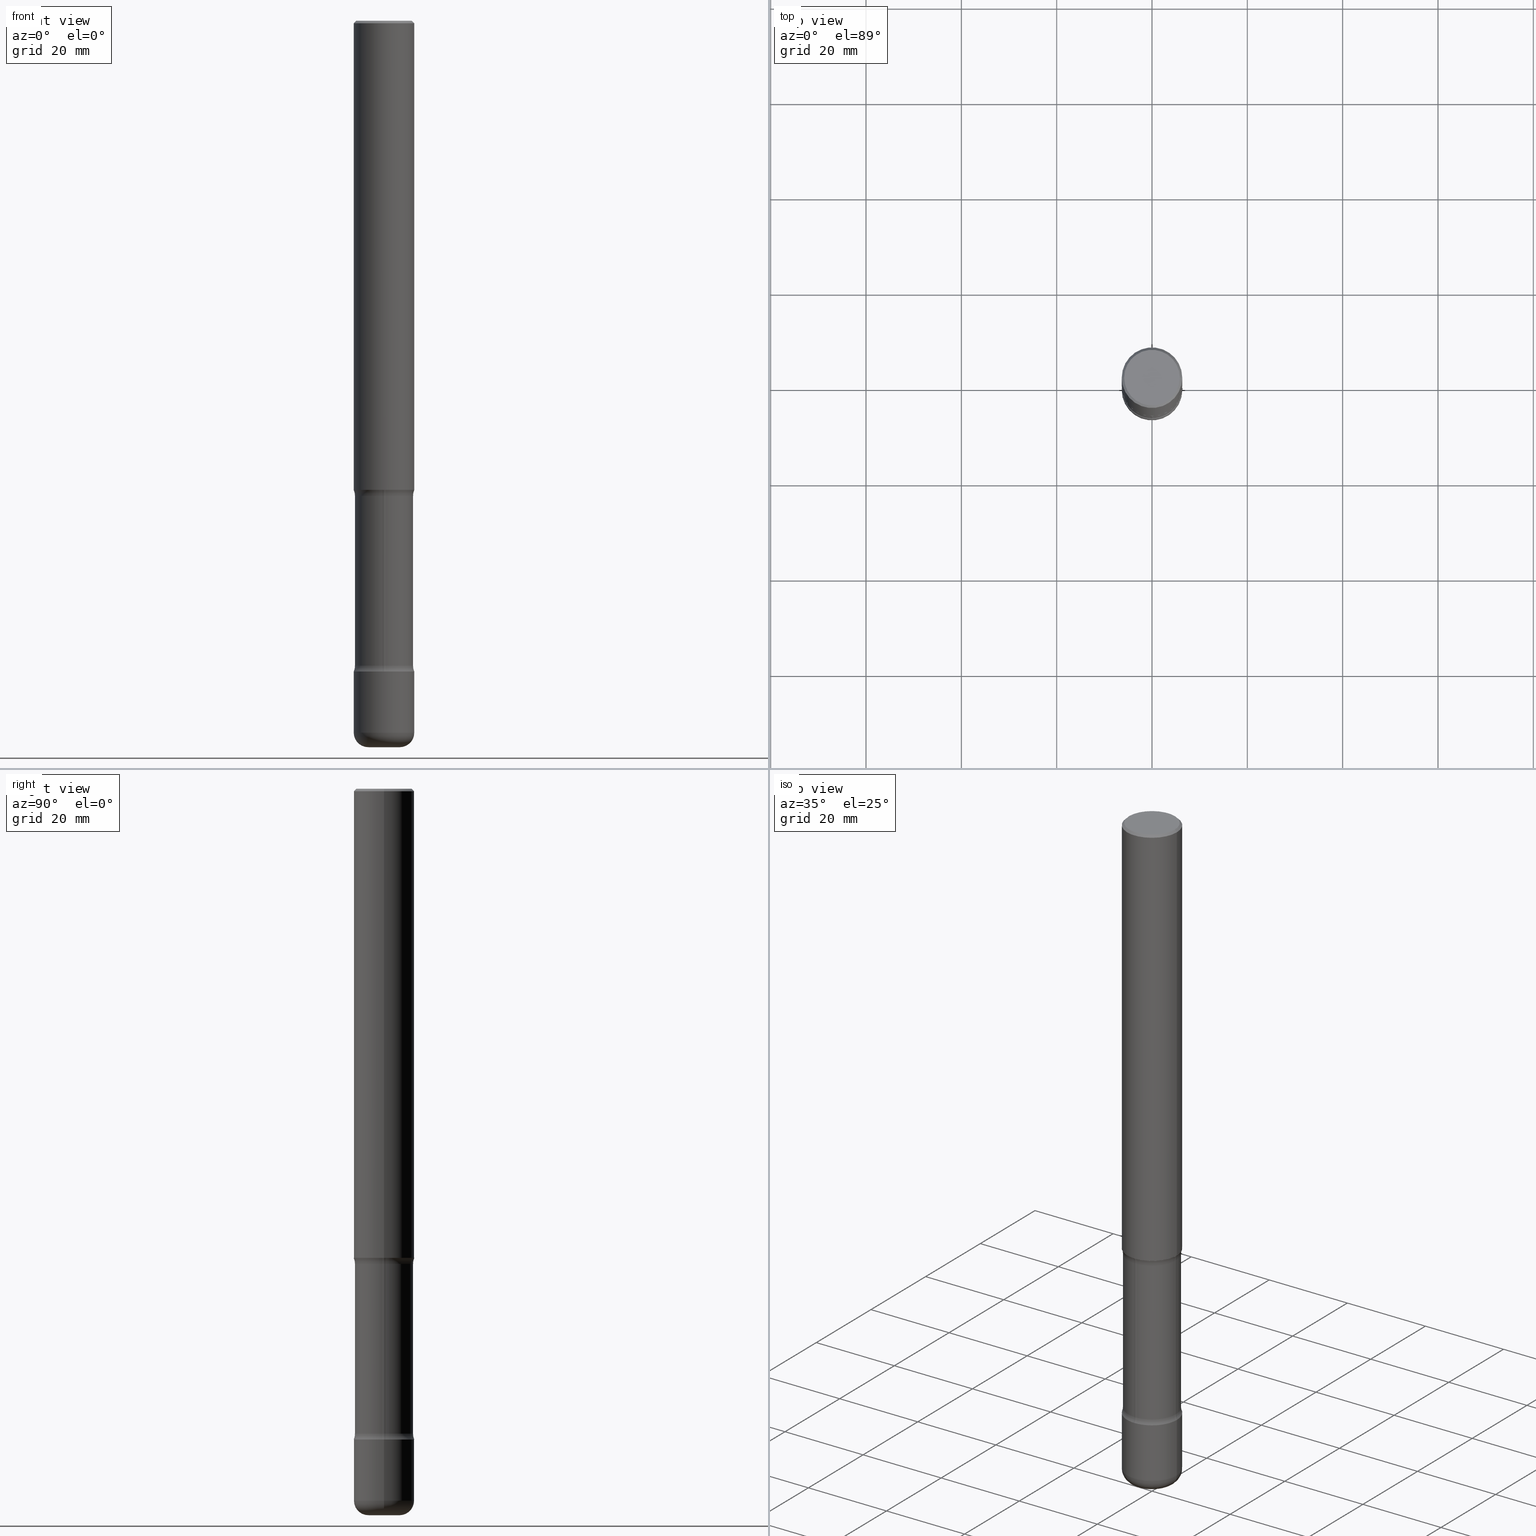
[diagram: canonical four-view strip — front | top / right | iso, engineering-drawing reading convention]
A machine part, canonical four-view strip (front | top / right | iso — engineering-drawing reading convention). The complete STEP part file that produces these views, byte-faithful:
ISO-10303-21;
HEADER;
FILE_DESCRIPTION (( 'STEP AP203' ),
    '1' );
FILE_NAME ('32774.STEP',
    '2023-03-11T07:01:01',
    ( '' ),
    ( '' ),
    'SwSTEP 2.0',
    'SolidWorks 2022',
    '' );
FILE_SCHEMA (( 'CONFIG_CONTROL_DESIGN' ));
ENDSEC;

DATA;
#1 = DIRECTION ( 'NONE',  ( 1.000000000000000000, -6.982962677686266711E-15, 4.883557194083112901E-29 ) ) ;
#2 = EDGE_CURVE ( 'NONE', #613, #259, #320, .T. ) ;
#3 = CARTESIAN_POINT ( 'NONE',  ( 4.890937612370287172E-31, -6.982962677686310098E-17, -0.02000000000000005593 ) ) ;
#4 = EDGE_LOOP ( 'NONE', ( #447, #222 ) ) ;
#5 = ADVANCED_FACE ( 'NONE', ( #46 ), #289, .T. ) ;
#6 = CC_DESIGN_PERSON_AND_ORGANIZATION_ASSIGNMENT ( #777, #214, ( #263 ) ) ;
#7 = CARTESIAN_POINT ( 'NONE',  ( 0.2499999999999996947, -2.227565094181926275E-14, -5.880000000000000782 ) ) ;
#8 = DIRECTION ( 'NONE',  ( 2.447307951285537878E-29, -3.488847578381732636E-15, -1.000000000000000000 ) ) ;
#9 = AXIS2_PLACEMENT_3D ( 'NONE', #547, #743, #486 ) ;
#10 = ORIENTED_EDGE ( 'NONE', *, *, #2, .T. ) ;
#11 = AXIS2_PLACEMENT_3D ( 'NONE', #397, #148, #756 ) ;
#12 = ADVANCED_FACE ( 'NONE', ( #112 ), #36, .F. ) ;
#13 = APPLICATION_PROTOCOL_DEFINITION ( 'international standard', 'config_control_design', 1994, #69 ) ;
#14 = CARTESIAN_POINT ( 'NONE',  ( 1.745740669421661735E-15, 0.2499999999999864830, -3.875000000000001776 ) ) ;
#15 = EDGE_LOOP ( 'NONE', ( #365, #551 ) ) ;
#16 = ORIENTED_EDGE ( 'NONE', *, *, #427, .F. ) ;
#17 = PLANE ( 'NONE',  #11 ) ;
#18 = VERTEX_POINT ( 'NONE', #353 ) ;
#19 = ORIENTED_EDGE ( 'NONE', *, *, #74, .F. ) ;
#20 = CARTESIAN_POINT ( 'NONE',  ( 0.1049999999999998712, -2.166924032282488112E-14, -5.999999999999999112 ) ) ;
#21 = DIRECTION ( 'NONE',  ( -2.445468806185136597E-29, 3.491481338843145583E-15, 1.000000000000000000 ) ) ;
#22 = EDGE_CURVE ( 'NONE', #576, #67, #334, .T. ) ;
#23 = EDGE_LOOP ( 'NONE', ( #249, #627, #563, #241 ) ) ;
#24 = CIRCLE ( 'NONE', #543, 0.2500000000000000000 ) ;
#25 = CIRCLE ( 'NONE', #297, 0.2500000000000000000 ) ;
#26 = AXIS2_PLACEMENT_3D ( 'NONE', #485, #422, #673 ) ;
#27 =( LENGTH_UNIT ( ) NAMED_UNIT ( * ) SI_UNIT ( $, .METRE. ) );
#28 = CARTESIAN_POINT ( 'NONE',  ( -1.579290560942345214E-17, -2.093608588548193142E-14, -5.996333319203365875 ) ) ;
#29 = ORIENTED_EDGE ( 'NONE', *, *, #623, .T. ) ;
#30 = CC_DESIGN_APPROVAL ( #153, ( #177 ) ) ;
#31 = COORDINATED_UNIVERSAL_TIME_OFFSET ( 5, 0, .BEHIND. ) ;
#32 = CARTESIAN_POINT ( 'NONE',  ( -1.715124499442751545E-15, -0.2500000000000187073, -5.374999999999999112 ) ) ;
#33 = ORIENTED_EDGE ( 'NONE', *, *, #70, .T. ) ;
#34 = APPROVAL_ROLE ( '' ) ;
#35 = FACE_OUTER_BOUND ( 'NONE', #684, .T. ) ;
#36 = PLANE ( 'NONE',  #155 ) ;
#37 = CIRCLE ( 'NONE', #113, 0.2500000000000000000 ) ;
#38 = DIRECTION ( 'NONE',  ( 2.447307951285537878E-29, -3.488847578381732636E-15, -1.000000000000000000 ) ) ;
#39 = CYLINDRICAL_SURFACE ( 'NONE', #296, 0.2400000000000001854 ) ;
#40 =( GEOMETRIC_REPRESENTATION_CONTEXT ( 3 ) GLOBAL_UNCERTAINTY_ASSIGNED_CONTEXT ( ( #531 ) ) GLOBAL_UNIT_ASSIGNED_CONTEXT ( ( #138, #275, #197 ) ) REPRESENTATION_CONTEXT ( 'NONE', 'WORKASPACE' ) );
#41 = LINE ( 'NONE', #483, #230 ) ;
#42 = EDGE_CURVE ( 'NONE', #178, #604, #647, .T. ) ;
#43 = DIRECTION ( 'NONE',  ( 1.000000000000000000, -6.982962677686256455E-15, 0.000000000000000000 ) ) ;
#44 = COORDINATED_UNIVERSAL_TIME_OFFSET ( 5, 0, .BEHIND. ) ;
#45 = DIRECTION ( 'NONE',  ( -1.000000000000000000, 6.982962677686265922E-15, 0.000000000000000000 ) ) ;
#46 = FACE_OUTER_BOUND ( 'NONE', #206, .T. ) ;
#47 = ADVANCED_FACE ( 'NONE', ( #232 ), #415, .F. ) ;
#48 = ADVANCED_FACE ( 'NONE', ( #173 ), #39, .T. ) ;
#49 = AXIS2_PLACEMENT_3D ( 'NONE', #493, #58, #739 ) ;
#50 = DIRECTION ( 'NONE',  ( 7.105427357601001859E-15, 1.000000000000000000, -3.491481338843145583E-15 ) ) ;
#51 = CIRCLE ( 'NONE', #504, 0.1250000000000001110 ) ;
#52 = VECTOR ( 'NONE', #118, 39.37007874015748143 ) ;
#53 = FACE_OUTER_BOUND ( 'NONE', #307, .T. ) ;
#54 = DIRECTION ( 'NONE',  ( 1.000000000000000000, -6.982962677686262766E-15, 0.000000000000000000 ) ) ;
#55 = DIRECTION ( 'NONE',  ( -2.445468806185136597E-29, 3.491481338843145583E-15, 1.000000000000000000 ) ) ;
#56 = VERTEX_POINT ( 'NONE', #162 ) ;
#57 = CYLINDRICAL_SURFACE ( 'NONE', #723, 0.2400000000000001854 ) ;
#58 = DIRECTION ( 'NONE',  ( 2.447307951285537878E-29, -3.488847578381732636E-15, -1.000000000000000000 ) ) ;
#59 = ORIENTED_EDGE ( 'NONE', *, *, #109, .F. ) ;
#60 = CARTESIAN_POINT ( 'NONE',  ( 9.593326020798916453E-29, -1.370435875585690915E-14, -3.923989794855664126 ) ) ;
#61 = CARTESIAN_POINT ( 'NONE',  ( -0.1300000000000000322, -1.938936795478409915E-14, -5.999999999999999112 ) ) ;
#62 = AXIS2_PLACEMENT_3D ( 'NONE', #248, #252, #176 ) ;
#63 = AXIS2_PLACEMENT_3D ( 'NONE', #333, #582, #690 ) ;
#64 = ORIENTED_EDGE ( 'NONE', *, *, #440, .T. ) ;
#65 = DIRECTION ( 'NONE',  ( 1.000000000000000000, -6.982962677686262766E-15, 0.000000000000000000 ) ) ;
#66 = FACE_OUTER_BOUND ( 'NONE', #15, .T. ) ;
#67 = VERTEX_POINT ( 'NONE', #657 ) ;
#68 = VERTEX_POINT ( 'NONE', #100 ) ;
#69 = APPLICATION_CONTEXT ( 'configuration controlled 3d designs of mechanical parts and assemblies' ) ;
#70 = EDGE_CURVE ( 'NONE', #421, #18, #349, .T. ) ;
#71 = CARTESIAN_POINT ( 'NONE',  ( 0.000000000000000000, 0.000000000000000000, 0.000000000000000000 ) ) ;
#72 = FACE_OUTER_BOUND ( 'NONE', #687, .T. ) ;
#73 = ORIENTED_EDGE ( 'NONE', *, *, #688, .F. ) ;
#74 = EDGE_CURVE ( 'NONE', #68, #390, #361, .T. ) ;
#75 = CARTESIAN_POINT ( 'NONE',  ( 1.314439483324511145E-28, -1.876671219628190963E-14, -5.375000000000000888 ) ) ;
#76 = CARTESIAN_POINT ( 'NONE',  ( 1.467281283711081734E-28, -2.094888803305886955E-14, -5.999999999999999112 ) ) ;
#77 = CLOSED_SHELL ( 'NONE', ( #420, #406, #670, #301, #327, #705, #47, #233 ) ) ;
#78 = EDGE_LOOP ( 'NONE', ( #699, #246 ) ) ;
#79 = AXIS2_PLACEMENT_3D ( 'NONE', #461, #706, #317 ) ;
#80 = DIRECTION ( 'NONE',  ( 1.000000000000000000, -6.982962677686260400E-15, 0.000000000000000000 ) ) ;
#81 = FACE_OUTER_BOUND ( 'NONE', #4, .T. ) ;
#82 = EDGE_LOOP ( 'NONE', ( #797, #754 ) ) ;
#83 = DIRECTION ( 'NONE',  ( 1.000000000000000000, -6.982962677686265922E-15, 4.876176775795935793E-29 ) ) ;
#84 = CYLINDRICAL_SURFACE ( 'NONE', #336, 0.2499999999999998890 ) ;
#85 = ORIENTED_EDGE ( 'NONE', *, *, #384, .T. ) ;
#86 = ORIENTED_EDGE ( 'NONE', *, *, #22, .F. ) ;
#87 = DIRECTION ( 'NONE',  ( 1.000000000000000000, -6.982962677686266711E-15, 0.000000000000000000 ) ) ;
#88 = DIRECTION ( 'NONE',  ( 1.000000000000000000, -6.982962677686266711E-15, 4.876225828469314487E-29 ) ) ;
#89 = ORIENTED_EDGE ( 'NONE', *, *, #630, .F. ) ;
#90 = AXIS2_PLACEMENT_3D ( 'NONE', #262, #641, #464 ) ;
#91 = AXIS2_PLACEMENT_3D ( 'NONE', #786, #180, #728 ) ;
#92 = CIRCLE ( 'NONE', #788, 0.2400000000000000466 ) ;
#93 = CARTESIAN_POINT ( 'NONE',  ( 1.109421455397081628E-27, -1.583959811155270230E-13, -45.36641205936084731 ) ) ;
#94 = ORIENTED_EDGE ( 'NONE', *, *, #260, .T. ) ;
#95 = APPROVAL_STATUS ( 'not_yet_approved' ) ;
#96 = DIRECTION ( 'NONE',  ( 2.447307951285537878E-29, -3.488847578381732636E-15, -1.000000000000000000 ) ) ;
#97 = EDGE_LOOP ( 'NONE', ( #527, #806, #579, #600 ) ) ;
#98 = EDGE_CURVE ( 'NONE', #588, #325, #491, .T. ) ;
#99 = CARTESIAN_POINT ( 'NONE',  ( -1.680822009453930364E-15, -0.2400000000000137579, -3.923989794855663238 ) ) ;
#100 = CARTESIAN_POINT ( 'NONE',  ( 0.2400000000000002687, -2.027157628439431676E-14, -5.326010205144338094 ) ) ;
#101 = CIRCLE ( 'NONE', #515, 0.2499999999999998057 ) ;
#102 = DATE_AND_TIME ( #339, #134 ) ;
#103 = AXIS2_PLACEMENT_3D ( 'NONE', #299, #357, #546 ) ;
#104 = DIRECTION ( 'NONE',  ( -2.445468806185136597E-29, 3.491481338843145583E-15, 1.000000000000000000 ) ) ;
#105 = EDGE_LOOP ( 'NONE', ( #398, #776, #435, #559 ) ) ;
#106 = EDGE_CURVE ( 'NONE', #732, #56, #771, .T. ) ;
#107 = ADVANCED_FACE ( 'NONE', ( #345 ), #780, .T. ) ;
#108 = CARTESIAN_POINT ( 'NONE',  ( 1.606081415867839292E-15, 0.2299999999999997324, -8.009064516888723911E-16 ) ) ;
#109 = EDGE_CURVE ( 'NONE', #694, #264, #735, .T. ) ;
#110 = ORIENTED_EDGE ( 'NONE', *, *, #573, .F. ) ;
#111 = LINE ( 'NONE', #667, #156 ) ;
#112 = FACE_OUTER_BOUND ( 'NONE', #424, .T. ) ;
#113 = AXIS2_PLACEMENT_3D ( 'NONE', #496, #245, #734 ) ;
#114 = DIRECTION ( 'NONE',  ( 2.447307951285537878E-29, -3.488847578381732636E-15, -1.000000000000000000 ) ) ;
#115 = CIRCLE ( 'NONE', #517, 0.2299999999999997324 ) ;
#116 = CARTESIAN_POINT ( 'NONE',  ( 9.473432906316804072E-29, -1.353344082870930909E-14, -3.875000000000000444 ) ) ;
#117 = ORIENTED_EDGE ( 'NONE', *, *, #589, .F. ) ;
#118 = DIRECTION ( 'NONE',  ( -2.445468806185136877E-29, 3.491481338843145188E-15, 1.000000000000000000 ) ) ;
#119 = LOCAL_TIME ( 2, 1, 1.000000000000000000, #399 ) ;
#120 = CARTESIAN_POINT ( 'NONE',  ( 1.109421455397081628E-27, -1.583959811155270230E-13, -45.36641205936084731 ) ) ;
#121 = VERTEX_POINT ( 'NONE', #374 ) ;
#122 = CARTESIAN_POINT ( 'NONE',  ( 1.437935658036860328E-28, -2.052991027239769923E-14, -5.880000000000000782 ) ) ;
#123 = CARTESIAN_POINT ( 'NONE',  ( 1.314439483324511145E-28, -1.876671219628190963E-14, -5.375000000000000888 ) ) ;
#124 = ORIENTED_EDGE ( 'NONE', *, *, #384, .F. ) ;
#125 = DIRECTION ( 'NONE',  ( 1.000000000000000000, -6.982962677686270655E-15, 0.000000000000000000 ) ) ;
#126 = AXIS2_PLACEMENT_3D ( 'NONE', #116, #8, #257 ) ;
#127 = CYLINDRICAL_SURFACE ( 'NONE', #683, 0.2400000000000001854 ) ;
#128 = CIRCLE ( 'NONE', #519, 0.2500000000000000000 ) ;
#129 = AXIS2_PLACEMENT_3D ( 'NONE', #565, #643, #83 ) ;
#130 = ORIENTED_EDGE ( 'NONE', *, *, #98, .T. ) ;
#131 = EDGE_CURVE ( 'NONE', #470, #632, #785, .T. ) ;
#132 = DIRECTION ( 'NONE',  ( 1.000000000000000000, -6.982962677686270655E-15, 0.000000000000000000 ) ) ;
#133 = EDGE_CURVE ( 'NONE', #470, #259, #229, .T. ) ;
#134 = LOCAL_TIME ( 2, 1, 1.000000000000000000, #597 ) ;
#135 = ORIENTED_EDGE ( 'NONE', *, *, #331, .T. ) ;
#136 = DIRECTION ( 'NONE',  ( 2.447307951285537878E-29, -3.488847578381732636E-15, -1.000000000000000000 ) ) ;
#137 = ORIENTED_EDGE ( 'NONE', *, *, #192, .F. ) ;
#138 =( CONVERSION_BASED_UNIT ( 'INCH', #570 ) LENGTH_UNIT ( ) NAMED_UNIT ( #347 ) );
#139 = CARTESIAN_POINT ( 'NONE',  ( 1.302459181810417859E-28, -1.859566524174961022E-14, -5.326010205144338094 ) ) ;
#140 = ORIENTED_EDGE ( 'NONE', *, *, #589, .T. ) ;
#141 = EDGE_LOOP ( 'NONE', ( #277, #272, #110, #356 ) ) ;
#142 = CONICAL_SURFACE ( 'NONE', #595, 1127.411546571527197, 1.535889741755011473 ) ;
#143 = FACE_OUTER_BOUND ( 'NONE', #501, .T. ) ;
#144 = ORIENTED_EDGE ( 'NONE', *, *, #784, .T. ) ;
#145 = ORIENTED_EDGE ( 'NONE', *, *, #503, .T. ) ;
#146 = APPROVAL_PERSON_ORGANIZATION ( #655, #716, #342 ) ;
#147 = DIRECTION ( 'NONE',  ( 2.447307951285537878E-29, -3.488847578381732636E-15, -1.000000000000000000 ) ) ;
#148 = DIRECTION ( 'NONE',  ( 2.447307951285537878E-29, -3.488847578381732242E-15, -1.000000000000000000 ) ) ;
#149 = ORIENTED_EDGE ( 'NONE', *, *, #620, .T. ) ;
#150 = ADVANCED_FACE ( 'NONE', ( #66, #805 ), #311, .F. ) ;
#151 = EDGE_CURVE ( 'NONE', #264, #337, #256, .T. ) ;
#152 = CARTESIAN_POINT ( 'NONE',  ( 4.890937612370287172E-31, -6.982962677686310098E-17, -0.02000000000000005593 ) ) ;
#153 = APPROVAL ( #454, 'UNSPECIFIED' ) ;
#154 = ORIENTED_EDGE ( 'NONE', *, *, #440, .F. ) ;
#155 = AXIS2_PLACEMENT_3D ( 'NONE', #665, #408, #659 ) ;
#156 = VECTOR ( 'NONE', #804, 39.37007874015748143 ) ;
#157 = AXIS2_PLACEMENT_3D ( 'NONE', #487, #677, #499 ) ;
#158 = CARTESIAN_POINT ( 'NONE',  ( -0.2299999999999997324, 1.640996229256270744E-15, 4.268512490089056766E-18 ) ) ;
#159 = EDGE_CURVE ( 'NONE', #675, #56, #24, .T. ) ;
#160 = DIRECTION ( 'NONE',  ( -2.445468806185136877E-29, 3.491481338843145188E-15, 1.000000000000000000 ) ) ;
#161 = DIRECTION ( 'NONE',  ( 2.445468806185136597E-29, -3.491481338843145583E-15, -1.000000000000000000 ) ) ;
#162 = CARTESIAN_POINT ( 'NONE',  ( 0.2500000000000000000, -2.051245286570347630E-14, -5.375000000000000888 ) ) ;
#163 = DATE_AND_TIME ( #534, #223 ) ;
#164 = CARTESIAN_POINT ( 'NONE',  ( 1.302459181810417859E-28, -1.859566524174961022E-14, -5.326010205144338094 ) ) ;
#165 = ORIENTED_EDGE ( 'NONE', *, *, #477, .F. ) ;
#166 = EDGE_CURVE ( 'NONE', #390, #576, #179, .T. ) ;
#167 = AXIS2_PLACEMENT_3D ( 'NONE', #542, #593, #358 ) ;
#168 = VECTOR ( 'NONE', #693, 39.37007874015748143 ) ;
#169 = CIRCLE ( 'NONE', #286, 0.1300000000000000322 ) ;
#170 = CARTESIAN_POINT ( 'NONE',  ( 9.473432906316804072E-29, -1.353344082870930909E-14, -3.875000000000000444 ) ) ;
#171 = DIRECTION ( 'NONE',  ( 1.000000000000000000, -6.982962677686260400E-15, 0.000000000000000000 ) ) ;
#172 = DIRECTION ( 'NONE',  ( -2.445468806185136597E-29, 3.491481338843145583E-15, 1.000000000000000000 ) ) ;
#173 = FACE_OUTER_BOUND ( 'NONE', #371, .T. ) ;
#174 = EDGE_CURVE ( 'NONE', #507, #240, #270, .T. ) ;
#175 = DIRECTION ( 'NONE',  ( -1.000000000000000000, 6.982962677686265922E-15, -4.883557194083112340E-29 ) ) ;
#176 = DIRECTION ( 'NONE',  ( 6.860497997771529985E-15, 1.000000000000000000, 0.000000000000000000 ) ) ;
#177 = PRODUCT_DEFINITION ( 'UNKNOWN', '', #263, #795 ) ;
#178 = VERTEX_POINT ( 'NONE', #61 ) ;
#179 = CIRCLE ( 'NONE', #469, 0.1249999999999999584 ) ;
#180 = DIRECTION ( 'NONE',  ( -2.445468806185136597E-29, 3.491481338843145583E-15, 1.000000000000000000 ) ) ;
#181 = CONICAL_SURFACE ( 'NONE', #258, 0.2499999999999998057, 0.7853981633974482790 ) ;
#182 = CARTESIAN_POINT ( 'NONE',  ( 4.890937612370287172E-31, -6.982962677686310098E-17, -0.02000000000000005593 ) ) ;
#183 = ORIENTED_EDGE ( 'NONE', *, *, #359, .T. ) ;
#184 = CARTESIAN_POINT ( 'NONE',  ( -0.2499999999999999167, -1.699035535688165916E-14, -5.375000000000000888 ) ) ;
#185 = DIRECTION ( 'NONE',  ( 1.000000000000000000, -6.982962677686265922E-15, 4.876176775795935793E-29 ) ) ;
#186 = ORIENTED_EDGE ( 'NONE', *, *, #98, .F. ) ;
#187 = EDGE_CURVE ( 'NONE', #67, #576, #37, .T. ) ;
#188 = PRODUCT ( '32774', '32774', '', ( #763 ) ) ;
#189 = CARTESIAN_POINT ( 'NONE',  ( 0.1300000000000000044, -2.143769542049691264E-14, -5.880000000000000782 ) ) ;
#190 = EDGE_LOOP ( 'NONE', ( #253, #369, #33, #465 ) ) ;
#191 = EDGE_LOOP ( 'NONE', ( #514, #456, #268, #10 ) ) ;
#192 = EDGE_CURVE ( 'NONE', #18, #584, #101, .T. ) ;
#193 = CARTESIAN_POINT ( 'NONE',  ( 1.466498880573014193E-28, -2.093444944235245511E-14, -5.996333319203365875 ) ) ;
#194 = TOROIDAL_SURFACE ( 'NONE', #634, 0.3650000000000000466, 0.1250000000000000833 ) ;
#195 = CIRCLE ( 'NONE', #157, 0.1250000000000000000 ) ;
#196 = EDGE_LOOP ( 'NONE', ( #768, #478, #703, #539 ) ) ;
#197 =( NAMED_UNIT ( * ) SI_UNIT ( $, .STERADIAN. ) SOLID_ANGLE_UNIT ( ) );
#198 = FACE_OUTER_BOUND ( 'NONE', #141, .T. ) ;
#199 = ORIENTED_EDGE ( 'NONE', *, *, #688, .T. ) ;
#200 = PERSON_AND_ORGANIZATION ( #210, #599 ) ;
#201 = LINE ( 'NONE', #451, #168 ) ;
#202 = ORIENTED_EDGE ( 'NONE', *, *, #131, .F. ) ;
#203 = DIRECTION ( 'NONE',  ( 1.000000000000000000, 0.000000000000000000, 0.000000000000000000 ) ) ;
#204 = FACE_OUTER_BOUND ( 'NONE', #610, .T. ) ;
#205 = CIRCLE ( 'NONE', #126, 0.2500000000000000000 ) ;
#206 = EDGE_LOOP ( 'NONE', ( #430, #64, #135, #137 ) ) ;
#207 = TOROIDAL_SURFACE ( 'NONE', #619, 0.3650000000000002687, 0.1250000000000000000 ) ;
#208 = CYLINDRICAL_SURFACE ( 'NONE', #79, 0.2500000000000000000 ) ;
#209 = EDGE_CURVE ( 'NONE', #325, #18, #674, .T. ) ;
#210 = PERSON ( 'UNSPECIFIED', 'UNSPECIFIED', 'UNSPECIFIED', ('UNSPECIFIED'), ('UNSPECIFIED'), ('UNSPECIFIED') ) ;
#211 = EDGE_LOOP ( 'NONE', ( #744, #144, #199, #554 ) ) ;
#212 = PERSON_AND_ORGANIZATION ( #210, #599 ) ;
#213 = ORIENTED_EDGE ( 'NONE', *, *, #109, .T. ) ;
#214 = PERSON_AND_ORGANIZATION_ROLE ( 'creator' ) ;
#215 = ADVANCED_FACE ( 'NONE', ( #314 ), #386, .T. ) ;
#216 = CYLINDRICAL_SURFACE ( 'NONE', #671, 0.2400000000000001854 ) ;
#217 = CARTESIAN_POINT ( 'NONE',  ( 1.302450171876299907E-28, -1.859579426913431272E-14, -5.326010205144338094 ) ) ;
#218 = MANIFOLD_SOLID_BREP ( 'Body-Move/Copy2[4]', #77 ) ;
#219 = ORIENTED_EDGE ( 'NONE', *, *, #166, .T. ) ;
#220 = APPROVAL_DATE_TIME ( #591, #680 ) ;
#221 = CARTESIAN_POINT ( 'NONE',  ( 1.314439483324511145E-28, -1.876671219628190963E-14, -5.375000000000000888 ) ) ;
#222 = ORIENTED_EDGE ( 'NONE', *, *, #448, .F. ) ;
#223 = LOCAL_TIME ( 2, 1, 1.000000000000000000, #463 ) ;
#224 = PERSON_AND_ORGANIZATION ( #210, #599 ) ;
#225 = DIRECTION ( 'NONE',  ( -1.000000000000000000, 6.982962677686266711E-15, 0.000000000000000000 ) ) ;
#226 = CC_DESIGN_PERSON_AND_ORGANIZATION_ASSIGNMENT ( #281, #773, ( #177 ) ) ;
#227 = LINE ( 'NONE', #725, #310 ) ;
#228 = CARTESIAN_POINT ( 'NONE',  ( 9.476191623967405434E-29, -1.352949018801719066E-14, -3.875000000000000444 ) ) ;
#229 = CIRCLE ( 'NONE', #62, 0.1250000000000000000 ) ;
#230 = VECTOR ( 'NONE', #782, 39.37007874015748143 ) ;
#231 = CIRCLE ( 'NONE', #505, 0.2500000000000000000 ) ;
#232 = FACE_OUTER_BOUND ( 'NONE', #191, .T. ) ;
#233 = ADVANCED_FACE ( 'NONE', ( #53 ), #127, .T. ) ;
#234 = EDGE_CURVE ( 'NONE', #694, #315, #479, .T. ) ;
#235 = DIRECTION ( 'NONE',  ( -6.982962677686264344E-15, -1.000000000000000000, 0.000000000000000000 ) ) ;
#236 = DIRECTION ( 'NONE',  ( 1.000000000000000000, -6.982962677686266711E-15, 0.000000000000000000 ) ) ;
#237 = ADVANCED_FACE ( 'NONE', ( #488 ), #801, .F. ) ;
#238 = CARTESIAN_POINT ( 'NONE',  ( 0.2400000000000001854, -1.520540123066189720E-14, -3.875000000000000444 ) ) ;
#239 = DIRECTION ( 'NONE',  ( 1.000000000000000000, -6.860497997771530774E-15, 4.840831133887331050E-29 ) ) ;
#240 = VERTEX_POINT ( 'NONE', #423 ) ;
#241 = ORIENTED_EDGE ( 'NONE', *, *, #159, .F. ) ;
#242 = AXIS2_PLACEMENT_3D ( 'NONE', #413, #533, #294 ) ;
#243 = CARTESIAN_POINT ( 'NONE',  ( 2.548781377355583748E-15, 0.3649999999999863354, -3.923989794855665458 ) ) ;
#244 = CIRCLE ( 'NONE', #402, 0.1199999999999993849 ) ;
#245 = DIRECTION ( 'NONE',  ( -2.445468806185136597E-29, 3.491481338843145583E-15, 1.000000000000000000 ) ) ;
#246 = ORIENTED_EDGE ( 'NONE', *, *, #540, .T. ) ;
#247 = CARTESIAN_POINT ( 'NONE',  ( 1.437935658036860328E-28, -2.052991027239769923E-14, -5.880000000000000782 ) ) ;
#248 = CARTESIAN_POINT ( 'NONE',  ( -2.504081769186480815E-15, -0.3650000000000188649, -5.326010205144336318 ) ) ;
#249 = ORIENTED_EDGE ( 'NONE', *, *, #662, .F. ) ;
#250 = EDGE_CURVE ( 'NONE', #584, #18, #555, .T. ) ;
#251 = CARTESIAN_POINT ( 'NONE',  ( 9.593326020798916453E-29, -1.370435875585690915E-14, -3.923989794855664126 ) ) ;
#252 = DIRECTION ( 'NONE',  ( 1.000000000000000000, -6.860497997771530774E-15, 4.840831133887331050E-29 ) ) ;
#253 = ORIENTED_EDGE ( 'NONE', *, *, #790, .F. ) ;
#254 = ORIENTED_EDGE ( 'NONE', *, *, #512, .T. ) ;
#255 = CARTESIAN_POINT ( 'NONE',  ( 0.000000000000000000, 0.000000000000000000, 0.000000000000000000 ) ) ;
#256 = CIRCLE ( 'NONE', #708, 0.2400000000000000466 ) ;
#257 = DIRECTION ( 'NONE',  ( 6.982962677686265922E-15, 1.000000000000000000, -4.370956789862821150E-15 ) ) ;
#258 = AXIS2_PLACEMENT_3D ( 'NONE', #152, #321, #513 ) ;
#259 = VERTEX_POINT ( 'NONE', #668 ) ;
#260 = EDGE_CURVE ( 'NONE', #304, #240, #205, .T. ) ;
#261 = CYLINDRICAL_SURFACE ( 'NONE', #793, 0.2500000000000000000 ) ;
#262 = CARTESIAN_POINT ( 'NONE',  ( 0.3650000000000002687, -2.114444661910509694E-14, -5.326010205144338094 ) ) ;
#263 = PRODUCT_DEFINITION_FORMATION_WITH_SPECIFIED_SOURCE ( 'ANY', '', #188, .NOT_KNOWN. ) ;
#264 = VERTEX_POINT ( 'NONE', #566 ) ;
#265 = DIRECTION ( 'NONE',  ( 0.7071067811865474617, -7.319954787623256045E-15, -0.7071067811865474617 ) ) ;
#266 = DIRECTION ( 'NONE',  ( -2.445468806185136597E-29, 3.491481338843145583E-15, 1.000000000000000000 ) ) ;
#267 = ORIENTED_EDGE ( 'NONE', *, *, #187, .T. ) ;
#268 = ORIENTED_EDGE ( 'NONE', *, *, #630, .T. ) ;
#269 = DIRECTION ( 'NONE',  ( 1.000000000000000000, -6.982962677686269866E-15, 4.883557194083114583E-29 ) ) ;
#270 = CIRCLE ( 'NONE', #284, 0.1250000000000001110 ) ;
#271 = AXIS2_PLACEMENT_3D ( 'NONE', #139, #753, #269 ) ;
#272 = ORIENTED_EDGE ( 'NONE', *, *, #662, .T. ) ;
#273 = EDGE_CURVE ( 'NONE', #68, #67, #414, .T. ) ;
#274 = VECTOR ( 'NONE', #436, 39.37007874015748143 ) ;
#275 =( NAMED_UNIT ( * ) PLANE_ANGLE_UNIT ( ) SI_UNIT ( $, .RADIAN. ) );
#276 = CARTESIAN_POINT ( 'NONE',  ( -0.2400000000000002687, -1.694035901640351371E-14, -5.326010205144338094 ) ) ;
#277 = ORIENTED_EDGE ( 'NONE', *, *, #644, .T. ) ;
#278 = EDGE_CURVE ( 'NONE', #604, #178, #169, .T. ) ;
#279 = FACE_OUTER_BOUND ( 'NONE', #190, .T. ) ;
#280 = CARTESIAN_POINT ( 'NONE',  ( 9.476191623967405434E-29, -1.352949018801719066E-14, -3.875000000000000444 ) ) ;
#281 = PERSON_AND_ORGANIZATION ( #210, #599 ) ;
#282 = FACE_OUTER_BOUND ( 'NONE', #511, .T. ) ;
#283 = DIRECTION ( 'NONE',  ( -2.445468806185136597E-29, 3.491481338843145583E-15, 1.000000000000000000 ) ) ;
#284 = AXIS2_PLACEMENT_3D ( 'NONE', #553, #239, #616 ) ;
#285 = ADVANCED_FACE ( 'NONE', ( #143 ), #84, .T. ) ;
#286 = AXIS2_PLACEMENT_3D ( 'NONE', #76, #266, #636 ) ;
#287 = APPROVAL_STATUS ( 'not_yet_approved' ) ;
#288 = DIRECTION ( 'NONE',  ( -2.445468806185136597E-29, 3.491481338843145583E-15, 1.000000000000000000 ) ) ;
#289 = CYLINDRICAL_SURFACE ( 'NONE', #242, 0.2499999999999998890 ) ;
#290 = CARTESIAN_POINT ( 'NONE',  ( 4.890937612370287172E-31, -6.982962677686310098E-17, -0.02000000000000005593 ) ) ;
#291 = DIRECTION ( 'NONE',  ( 6.982962677686265922E-15, 1.000000000000000000, -3.488847578381732636E-15 ) ) ;
#292 = ADVANCED_FACE ( 'NONE', ( #204 ), #181, .T. ) ;
#293 = DIRECTION ( 'NONE',  ( 2.447307951285537878E-29, -3.488847578381732636E-15, -1.000000000000000000 ) ) ;
#294 = DIRECTION ( 'NONE',  ( 1.000000000000000000, -6.982962677686266711E-15, 4.876176775795935793E-29 ) ) ;
#295 = CC_DESIGN_PERSON_AND_ORGANIZATION_ASSIGNMENT ( #377, #508, ( #188 ) ) ;
#296 = AXIS2_PLACEMENT_3D ( 'NONE', #228, #472, #724 ) ;
#297 = AXIS2_PLACEMENT_3D ( 'NONE', #474, #407, #340 ) ;
#298 = TOROIDAL_SURFACE ( 'NONE', #545, 0.3650000000000000466, 0.1250000000000000833 ) ;
#299 = CARTESIAN_POINT ( 'NONE',  ( 1.314439483324511145E-28, -1.876671219628190963E-14, -5.375000000000000888 ) ) ;
#300 = DIRECTION ( 'NONE',  ( -2.445468806185136597E-29, 3.491481338843145583E-15, 1.000000000000000000 ) ) ;
#301 = ADVANCED_FACE ( 'NONE', ( #506 ), #544, .F. ) ;
#302 = DIRECTION ( 'NONE',  ( -2.445468806185136597E-29, 3.491481338843145583E-15, 1.000000000000000000 ) ) ;
#303 = DIRECTION ( 'NONE',  ( -2.438088387897960049E-29, 3.491481338843145188E-15, 1.000000000000000000 ) ) ;
#304 = VERTEX_POINT ( 'NONE', #14 ) ;
#305 = DIRECTION ( 'NONE',  ( -6.982962677686266711E-15, -1.000000000000000000, 3.491481338843145583E-15 ) ) ;
#306 = DIRECTION ( 'NONE',  ( -1.000000000000000000, 6.982962677686265922E-15, 0.000000000000000000 ) ) ;
#307 = EDGE_LOOP ( 'NONE', ( #403, #329, #618, #497 ) ) ;
#308 = CLOSED_SHELL ( 'NONE', ( #237, #360, #335, #150, #215, #772, #466, #482 ) ) ;
#309 = CARTESIAN_POINT ( 'NONE',  ( 0.2500000000000000555, -1.527523085743875734E-14, -3.875000000000000444 ) ) ;
#310 = VECTOR ( 'NONE', #541, 39.37007874015748143 ) ;
#311 = PLANE ( 'NONE',  #605 ) ;
#312 = ORIENTED_EDGE ( 'NONE', *, *, #151, .F. ) ;
#313 = CARTESIAN_POINT ( 'NONE',  ( 9.595994639108339414E-29, -1.370053714254949480E-14, -3.923989794855664126 ) ) ;
#314 = FACE_OUTER_BOUND ( 'NONE', #97, .T. ) ;
#315 = VERTEX_POINT ( 'NONE', #702 ) ;
#316 = DIRECTION ( 'NONE',  ( 0.9993908270190957621, -6.978169709227536755E-15, -0.03489949670249952590 ) ) ;
#317 = DIRECTION ( 'NONE',  ( 1.000000000000000000, -6.982962677686266711E-15, 4.876176775795935793E-29 ) ) ;
#318 = VERTEX_POINT ( 'NONE', #510 ) ;
#319 = CARTESIAN_POINT ( 'NONE',  ( 1.579290560971672967E-17, -2.093608588548193142E-14, -5.996333319203365875 ) ) ;
#320 = CIRCLE ( 'NONE', #633, 0.2400000000000002687 ) ;
#321 = DIRECTION ( 'NONE',  ( 2.445468806185136597E-29, -3.491481338843145583E-15, -1.000000000000000000 ) ) ;
#322 = AXIS2_PLACEMENT_3D ( 'NONE', #221, #355, #476 ) ;
#323 = ORIENTED_EDGE ( 'NONE', *, *, #729, .F. ) ;
#324 = CC_DESIGN_APPROVAL ( #680, ( #354 ) ) ;
#325 = VERTEX_POINT ( 'NONE', #455 ) ;
#326 = DIRECTION ( 'NONE',  ( -2.447307951285537878E-29, 3.488847578381732242E-15, 1.000000000000000000 ) ) ;
#327 = ADVANCED_FACE ( 'NONE', ( #81 ), #17, .F. ) ;
#328 = DIRECTION ( 'NONE',  ( 1.000000000000000000, -6.982962677686266711E-15, 4.876176775795935793E-29 ) ) ;
#329 = ORIENTED_EDGE ( 'NONE', *, *, #590, .T. ) ;
#330 = ORIENTED_EDGE ( 'NONE', *, *, #379, .T. ) ;
#331 = EDGE_CURVE ( 'NONE', #588, #584, #201, .T. ) ;
#332 = LINE ( 'NONE', #697, #726 ) ;
#333 = CARTESIAN_POINT ( 'NONE',  ( -1.043851414335219820E-46, 1.490343170380447200E-32, 4.268512490100411279E-18 ) ) ;
#334 = CIRCLE ( 'NONE', #167, 0.2500000000000000000 ) ;
#335 = ADVANCED_FACE ( 'NONE', ( #518 ), #532, .T. ) ;
#336 = AXIS2_PLACEMENT_3D ( 'NONE', #382, #759, #328 ) ;
#337 = VERTEX_POINT ( 'NONE', #767 ) ;
#338 = CIRCLE ( 'NONE', #26, 0.2400000000000002687 ) ;
#339 = CALENDAR_DATE ( 2023, 11, 3 ) ;
#340 = DIRECTION ( 'NONE',  ( 1.000000000000000000, -6.982962677686270655E-15, 0.000000000000000000 ) ) ;
#341 = ORIENTED_EDGE ( 'NONE', *, *, #564, .F. ) ;
#342 = APPROVAL_ROLE ( '' ) ;
#343 = DIRECTION ( 'NONE',  ( 1.000000000000000000, -6.982962677686279332E-15, 0.000000000000000000 ) ) ;
#344 = ADVANCED_FACE ( 'NONE', ( #578 ), #658, .F. ) ;
#345 = FACE_OUTER_BOUND ( 'NONE', #462, .T. ) ;
#346 = SECURITY_CLASSIFICATION_LEVEL ( 'unclassified' ) ;
#347 = DIMENSIONAL_EXPONENTS ( 1.000000000000000000, 0.000000000000000000, 0.000000000000000000, 0.000000000000000000, 0.000000000000000000, 0.000000000000000000, 0.000000000000000000 ) ;
#348 = DIRECTION ( 'NONE',  ( 6.982962677686265922E-15, 1.000000000000000000, -4.553079989440435148E-15 ) ) ;
#349 = LINE ( 'NONE', #715, #502 ) ;
#350 = AXIS2_PLACEMENT_3D ( 'NONE', #437, #682, #429 ) ;
#351 = AXIS2_PLACEMENT_3D ( 'NONE', #164, #288, #471 ) ;
#352 = DIRECTION ( 'NONE',  ( 7.105427357601001859E-15, 1.000000000000000000, -3.491481338843145583E-15 ) ) ;
#353 = CARTESIAN_POINT ( 'NONE',  ( -0.2499999999999998057, 1.675911042644702196E-15, -0.02000000000000005593 ) ) ;
#354 = SECURITY_CLASSIFICATION ( '', '', #346 ) ;
#355 = DIRECTION ( 'NONE',  ( 2.438088387897960049E-29, -3.491481338843145188E-15, -1.000000000000000000 ) ) ;
#356 = ORIENTED_EDGE ( 'NONE', *, *, #106, .F. ) ;
#357 = DIRECTION ( 'NONE',  ( -2.445468806185136597E-29, 3.491481338843145583E-15, 1.000000000000000000 ) ) ;
#358 = DIRECTION ( 'NONE',  ( 1.000000000000000000, -6.982962677686262766E-15, 0.000000000000000000 ) ) ;
#359 = EDGE_CURVE ( 'NONE', #421, #567, #115, .T. ) ;
#360 = ADVANCED_FACE ( 'NONE', ( #198 ), #208, .T. ) ;
#361 = CIRCLE ( 'NONE', #425, 0.2400000000000002687 ) ;
#362 = CIRCLE ( 'NONE', #774, 0.2500000000000000000 ) ;
#363 = DIRECTION ( 'NONE',  ( 6.982962677686265922E-15, 1.000000000000000000, -3.488847578381732636E-15 ) ) ;
#364 = CARTESIAN_POINT ( 'NONE',  ( -0.3650000000000002687, -1.600218425622524303E-14, -5.326010205144338094 ) ) ;
#365 = ORIENTED_EDGE ( 'NONE', *, *, #278, .F. ) ;
#366 = LOCAL_TIME ( 2, 1, 1.000000000000000000, #44 ) ;
#367 = DIRECTION ( 'NONE',  ( -2.445468806185136597E-29, 3.491481338843145583E-15, 1.000000000000000000 ) ) ;
#368 = DIRECTION ( 'NONE',  ( -2.445468806185136597E-29, 3.491481338843145583E-15, 1.000000000000000000 ) ) ;
#369 = ORIENTED_EDGE ( 'NONE', *, *, #359, .F. ) ;
#370 = DIRECTION ( 'NONE',  ( 1.000000000000000000, -6.982962677686266711E-15, 0.000000000000000000 ) ) ;
#371 = EDGE_LOOP ( 'NONE', ( #438, #149, #312, #73 ) ) ;
#372 = AXIS2_PLACEMENT_3D ( 'NONE', #594, #104, #775 ) ;
#373 = DIRECTION ( 'NONE',  ( 1.000000000000000000, -6.982962677686272233E-15, 0.000000000000000000 ) ) ;
#374 = CARTESIAN_POINT ( 'NONE',  ( 1.467487421064480036E-28, -2.092029297987236077E-14, -5.996333319203365875 ) ) ;
#375 = ORIENTED_EDGE ( 'NONE', *, *, #650, .T. ) ;
#376 = ORIENTED_EDGE ( 'NONE', *, *, #159, .T. ) ;
#377 = PERSON_AND_ORGANIZATION ( #210, #599 ) ;
#378 = CARTESIAN_POINT ( 'NONE',  ( 1.467281283711081734E-28, -2.094888803305886955E-14, -5.999999999999999112 ) ) ;
#379 = EDGE_CURVE ( 'NONE', #567, #421, #569, .T. ) ;
#380 = ORIENTED_EDGE ( 'NONE', *, *, #166, .F. ) ;
#381 = DIRECTION ( 'NONE',  ( -6.982962677686265922E-15, -1.000000000000000000, 3.488847578381732242E-15 ) ) ;
#382 = CARTESIAN_POINT ( 'NONE',  ( 0.000000000000000000, 0.000000000000000000, 0.000000000000000000 ) ) ;
#383 = ORIENTED_EDGE ( 'NONE', *, *, #133, .T. ) ;
#384 = EDGE_CURVE ( 'NONE', #121, #629, #575, .T. ) ;
#385 = FACE_OUTER_BOUND ( 'NONE', #78, .T. ) ;
#386 = TOROIDAL_SURFACE ( 'NONE', #350, 0.1300000000000000044, 0.1199999999999993711 ) ;
#387 = CARTESIAN_POINT ( 'NONE',  ( -1.043851414335219820E-46, 1.490343170380447200E-32, 4.268512490100411279E-18 ) ) ;
#388 = ORIENTED_EDGE ( 'NONE', *, *, #250, .F. ) ;
#389 = AXIS2_PLACEMENT_3D ( 'NONE', #108, #468, #538 ) ;
#390 = VERTEX_POINT ( 'NONE', #276 ) ;
#391 = PLANE ( 'NONE',  #129 ) ;
#392 = AXIS2_PLACEMENT_3D ( 'NONE', #71, #516, #203 ) ;
#393 = DIRECTION ( 'NONE',  ( 1.000000000000000000, -6.982962677686264344E-15, 4.883557194083112340E-29 ) ) ;
#394 = VERTEX_POINT ( 'NONE', #522 ) ;
#395 = ORIENTED_EDGE ( 'NONE', *, *, #209, .T. ) ;
#396 = DIRECTION ( 'NONE',  ( 6.982962677686265922E-15, 1.000000000000000000, -4.553079989440437514E-15 ) ) ;
#397 = CARTESIAN_POINT ( 'NONE',  ( 9.476191623967405434E-29, -1.352949018801719066E-14, -3.875000000000000444 ) ) ;
#398 = ORIENTED_EDGE ( 'NONE', *, *, #704, .T. ) ;
#399 = COORDINATED_UNIVERSAL_TIME_OFFSET ( 5, 0, .BEHIND. ) ;
#400 = DIRECTION ( 'NONE',  ( 2.445468806185136597E-29, -3.491481338843145583E-15, -1.000000000000000000 ) ) ;
#401 = AXIS2_PLACEMENT_3D ( 'NONE', #123, #609, #792 ) ;
#402 = AXIS2_PLACEMENT_3D ( 'NONE', #189, #305, #373 ) ;
#403 = ORIENTED_EDGE ( 'NONE', *, *, #524, .F. ) ;
#404 = CIRCLE ( 'NONE', #444, 0.2500000000000000000 ) ;
#405 = APPROVAL_DATE_TIME ( #521, #153 ) ;
#406 = ADVANCED_FACE ( 'NONE', ( #72 ), #207, .F. ) ;
#407 = DIRECTION ( 'NONE',  ( -2.445468806185136597E-29, 3.491481338843145583E-15, 1.000000000000000000 ) ) ;
#408 = DIRECTION ( 'NONE',  ( -2.438088387897960049E-29, 3.491481338843145188E-15, 1.000000000000000000 ) ) ;
#409 = CARTESIAN_POINT ( 'NONE',  ( 1.314439483324511145E-28, -1.876671219628190963E-14, -5.375000000000000888 ) ) ;
#410 = DIRECTION ( 'NONE',  ( 6.982962677686265922E-15, 1.000000000000000000, -4.553079989440433570E-15 ) ) ;
#411 = APPROVAL_DATE_TIME ( #163, #716 ) ;
#412 = FACE_OUTER_BOUND ( 'NONE', #105, .T. ) ;
#413 = CARTESIAN_POINT ( 'NONE',  ( 0.000000000000000000, 0.000000000000000000, 0.000000000000000000 ) ) ;
#414 = CIRCLE ( 'NONE', #90, 0.1249999999999999584 ) ;
#415 = TOROIDAL_SURFACE ( 'NONE', #617, 0.3650000000000002687, 0.1250000000000000000 ) ;
#416 = CIRCLE ( 'NONE', #583, 0.1250000000000001110 ) ;
#417 = DIRECTION ( 'NONE',  ( 6.982962677686265922E-15, 1.000000000000000000, -4.370956789862821150E-15 ) ) ;
#418 = DIRECTION ( 'NONE',  ( -0.7071067811865474617, 2.468850131082256666E-15, -0.7071067811865474617 ) ) ;
#419 = CARTESIAN_POINT ( 'NONE',  ( 1.675911042644836105E-15, 0.2399999999999816724, -5.326010205144338983 ) ) ;
#420 = ADVANCED_FACE ( 'NONE', ( #412 ), #216, .T. ) ;
#421 = VERTEX_POINT ( 'NONE', #158 ) ;
#422 = DIRECTION ( 'NONE',  ( 2.447307951285537878E-29, -3.488847578381732636E-15, -1.000000000000000000 ) ) ;
#423 = CARTESIAN_POINT ( 'NONE',  ( -1.715124499442788030E-15, -0.2500000000000136002, -3.874999999999999556 ) ) ;
#424 = EDGE_LOOP ( 'NONE', ( #186, #154 ) ) ;
#425 = AXIS2_PLACEMENT_3D ( 'NONE', #475, #596, #171 ) ;
#426 = TOROIDAL_SURFACE ( 'NONE', #351, 0.3650000000000002687, 0.1250000000000000000 ) ;
#427 = EDGE_CURVE ( 'NONE', #629, #803, #736, .T. ) ;
#428 = APPLICATION_CONTEXT ( 'configuration controlled 3d designs of mechanical parts and assemblies' ) ;
#429 = DIRECTION ( 'NONE',  ( 1.000000000000000000, -6.982962677686264344E-15, 4.883557194083112340E-29 ) ) ;
#430 = ORIENTED_EDGE ( 'NONE', *, *, #209, .F. ) ;
#431 = CC_DESIGN_SECURITY_CLASSIFICATION ( #354, ( #263 ) ) ;
#432 = DIRECTION ( 'NONE',  ( -2.445468806185136597E-29, 3.491481338843145583E-15, 1.000000000000000000 ) ) ;
#433 = DIRECTION ( 'NONE',  ( 7.105427357601001859E-15, 1.000000000000000000, -3.491481338843145583E-15 ) ) ;
#434 = PRODUCT_DEFINITION_SHAPE ( 'NONE', 'NONE',  #177 ) ;
#435 = ORIENTED_EDGE ( 'NONE', *, *, #2, .F. ) ;
#436 = DIRECTION ( 'NONE',  ( -2.445468806185136877E-29, 3.491481338843145188E-15, 1.000000000000000000 ) ) ;
#437 = CARTESIAN_POINT ( 'NONE',  ( 1.437935658036860328E-28, -2.052991027239769923E-14, -5.880000000000000782 ) ) ;
#438 = ORIENTED_EDGE ( 'NONE', *, *, #74, .T. ) ;
#439 = ORIENTED_EDGE ( 'NONE', *, *, #704, .F. ) ;
#440 = EDGE_CURVE ( 'NONE', #325, #588, #25, .T. ) ;
#441 = AXIS2_PLACEMENT_3D ( 'NONE', #3, #300, #236 ) ;
#442 = CIRCLE ( 'NONE', #91, 0.2500000000000000000 ) ;
#443 = LINE ( 'NONE', #319, #649 ) ;
#444 = AXIS2_PLACEMENT_3D ( 'NONE', #122, #367, #54 ) ;
#445 = CC_DESIGN_DATE_AND_TIME_ASSIGNMENT ( #102, #766, ( #177 ) ) ;
#446 = DIRECTION ( 'NONE',  ( 2.447307951285537878E-29, -3.488847578381732636E-15, -1.000000000000000000 ) ) ;
#447 = ORIENTED_EDGE ( 'NONE', *, *, #260, .F. ) ;
#448 = EDGE_CURVE ( 'NONE', #240, #304, #362, .T. ) ;
#449 = CARTESIAN_POINT ( 'NONE',  ( 9.595994639108339414E-29, -1.370053714254949480E-14, -3.923989794855664126 ) ) ;
#450 = ADVANCED_FACE ( 'NONE', ( #721 ), #194, .F. ) ;
#451 = CARTESIAN_POINT ( 'NONE',  ( 0.2499999999999998890, -1.745740669421565889E-15, 1.219044193948983388E-29 ) ) ;
#452 = ADVANCED_FACE ( 'NONE', ( #282 ), #648, .F. ) ;
#453 = EDGE_LOOP ( 'NONE', ( #124, #523, #16 ) ) ;
#454 = APPROVAL_STATUS ( 'not_yet_approved' ) ;
#455 = CARTESIAN_POINT ( 'NONE',  ( -0.2500000000000000000, -5.023303067996774148E-15, -3.875000000000000444 ) ) ;
#456 = ORIENTED_EDGE ( 'NONE', *, *, #503, .F. ) ;
#457 = AXIS2_PLACEMENT_3D ( 'NONE', #120, #612, #306 ) ;
#458 = CARTESIAN_POINT ( 'NONE',  ( 9.595994639108339414E-29, -1.370053714254949480E-14, -3.923989794855664126 ) ) ;
#459 = CIRCLE ( 'NONE', #103, 0.2500000000000000000 ) ;
#460 = ORIENTED_EDGE ( 'NONE', *, *, #540, .F. ) ;
#461 = CARTESIAN_POINT ( 'NONE',  ( 0.000000000000000000, 0.000000000000000000, 0.000000000000000000 ) ) ;
#462 = EDGE_LOOP ( 'NONE', ( #490, #86 ) ) ;
#463 = COORDINATED_UNIVERSAL_TIME_OFFSET ( 5, 0, .BEHIND. ) ;
#464 = DIRECTION ( 'NONE',  ( 1.000000000000000000, -6.982962677686265133E-15, 0.000000000000000000 ) ) ;
#465 = ORIENTED_EDGE ( 'NONE', *, *, #192, .T. ) ;
#466 = ADVANCED_FACE ( 'NONE', ( #653 ), #587, .F. ) ;
#467 = ADVANCED_FACE ( 'NONE', ( #601 ), #426, .F. ) ;
#468 = DIRECTION ( 'NONE',  ( 2.438088387897960049E-29, -3.491481338843145188E-15, -1.000000000000000000 ) ) ;
#469 = AXIS2_PLACEMENT_3D ( 'NONE', #364, #433, #624 ) ;
#470 = VERTEX_POINT ( 'NONE', #32 ) ;
#471 = DIRECTION ( 'NONE',  ( 1.000000000000000000, -6.982962677686269866E-15, 4.883557194083114583E-29 ) ) ;
#472 = DIRECTION ( 'NONE',  ( -2.445468806185136597E-29, 3.491481338843145583E-15, 1.000000000000000000 ) ) ;
#473 = DATE_AND_TIME ( #585, #366 ) ;
#474 = CARTESIAN_POINT ( 'NONE',  ( 9.476191623967405434E-29, -1.352949018801719066E-14, -3.875000000000000444 ) ) ;
#475 = CARTESIAN_POINT ( 'NONE',  ( 1.302459181810417859E-28, -1.859566524174961022E-14, -5.326010205144338094 ) ) ;
#476 = DIRECTION ( 'NONE',  ( -1.000000000000000000, 6.982962677686265922E-15, -4.876176775795935793E-29 ) ) ;
#477 = EDGE_CURVE ( 'NONE', #803, #629, #480, .T. ) ;
#478 = ORIENTED_EDGE ( 'NONE', *, *, #174, .T. ) ;
#479 = CIRCLE ( 'NONE', #568, 0.2500000000000000000 ) ;
#480 = CIRCLE ( 'NONE', #606, 0.1050000000000001071 ) ;
#481 = AXIS2_PLACEMENT_3D ( 'NONE', #75, #326, #381 ) ;
#482 = ADVANCED_FACE ( 'NONE', ( #35 ), #142, .F. ) ;
#483 = CARTESIAN_POINT ( 'NONE',  ( -1.646519519465022014E-15, -0.2400000000000211131, -5.996333319203364987 ) ) ;
#484 = DIRECTION ( 'NONE',  ( 2.447307951285537878E-29, -3.488847578381732636E-15, -1.000000000000000000 ) ) ;
#485 = CARTESIAN_POINT ( 'NONE',  ( 1.302450171876299907E-28, -1.859579426913431272E-14, -5.326010205144338094 ) ) ;
#486 = DIRECTION ( 'NONE',  ( 1.000000000000000000, -6.982962677686272233E-15, 0.000000000000000000 ) ) ;
#487 = CARTESIAN_POINT ( 'NONE',  ( 2.548781377355619247E-15, 0.3649999999999816724, -5.326010205144338983 ) ) ;
#488 = FACE_OUTER_BOUND ( 'NONE', #453, .T. ) ;
#489 = CC_DESIGN_PERSON_AND_ORGANIZATION_ASSIGNMENT ( #652, #781, ( #354 ) ) ;
#490 = ORIENTED_EDGE ( 'NONE', *, *, #187, .F. ) ;
#491 = CIRCLE ( 'NONE', #761, 0.2500000000000000000 ) ;
#492 = CARTESIAN_POINT ( 'NONE',  ( 0.2299999999999997324, -1.681434332853597433E-15, 4.268512490111905999E-18 ) ) ;
#493 = CARTESIAN_POINT ( 'NONE',  ( 1.314439483324511145E-28, -1.876671219628190963E-14, -5.375000000000000888 ) ) ;
#494 = ORIENTED_EDGE ( 'NONE', *, *, #765, .T. ) ;
#495 = CARTESIAN_POINT ( 'NONE',  ( -0.3650000000000000466, -1.110705615702512918E-14, -3.923989794855664126 ) ) ;
#496 = CARTESIAN_POINT ( 'NONE',  ( 1.314439483324511145E-28, -1.876671219628190963E-14, -5.375000000000000888 ) ) ;
#497 = ORIENTED_EDGE ( 'NONE', *, *, #650, .F. ) ;
#498 = ADVANCED_FACE ( 'NONE', ( #279 ), #696, .T. ) ;
#499 = DIRECTION ( 'NONE',  ( -6.982962677686266711E-15, -1.000000000000000000, 0.000000000000000000 ) ) ;
#500 = DIRECTION ( 'NONE',  ( 1.000000000000000000, -6.982962677686262766E-15, 0.000000000000000000 ) ) ;
#501 = EDGE_LOOP ( 'NONE', ( #130, #395, #388, #707 ) ) ;
#502 = VECTOR ( 'NONE', #418, 39.37007874015748854 ) ;
#503 = EDGE_CURVE ( 'NONE', #632, #470, #128, .T. ) ;
#504 = AXIS2_PLACEMENT_3D ( 'NONE', #495, #50, #622 ) ;
#505 = AXIS2_PLACEMENT_3D ( 'NONE', #247, #302, #65 ) ;
#506 = FACE_OUTER_BOUND ( 'NONE', #737, .T. ) ;
#507 = VERTEX_POINT ( 'NONE', #99 ) ;
#508 = PERSON_AND_ORGANIZATION_ROLE ( 'design_owner' ) ;
#509 = APPROVAL_PERSON_ORGANIZATION ( #200, #153, #713 ) ;
#510 = CARTESIAN_POINT ( 'NONE',  ( 1.675911042644800015E-15, 0.2399999999999863354, -3.923989794855665458 ) ) ;
#511 = EDGE_LOOP ( 'NONE', ( #183, #330 ) ) ;
#512 = EDGE_CURVE ( 'NONE', #178, #394, #581, .T. ) ;
#513 = DIRECTION ( 'NONE',  ( -1.000000000000000000, 6.982962677686266711E-15, 0.000000000000000000 ) ) ;
#514 = ORIENTED_EDGE ( 'NONE', *, *, #133, .F. ) ;
#515 = AXIS2_PLACEMENT_3D ( 'NONE', #182, #368, #796 ) ;
#516 = DIRECTION ( 'NONE',  ( 0.000000000000000000, 0.000000000000000000, 1.000000000000000000 ) ) ;
#517 = AXIS2_PLACEMENT_3D ( 'NONE', #387, #21, #88 ) ;
#518 = FACE_OUTER_BOUND ( 'NONE', #639, .T. ) ;
#519 = AXIS2_PLACEMENT_3D ( 'NONE', #409, #293, #656 ) ;
#520 = ORIENTED_EDGE ( 'NONE', *, *, #573, .T. ) ;
#521 = DATE_AND_TIME ( #709, #119 ) ;
#522 = CARTESIAN_POINT ( 'NONE',  ( -0.2499999999999996947, -1.875355343299744876E-14, -5.880000000000000782 ) ) ;
#523 = ORIENTED_EDGE ( 'NONE', *, *, #729, .T. ) ;
#524 = EDGE_CURVE ( 'NONE', #507, #259, #41, .T. ) ;
#525 = CALENDAR_DATE ( 2023, 11, 3 ) ;
#526 = CARTESIAN_POINT ( 'NONE',  ( 1.466498880573014193E-28, -2.093444944235245511E-14, -5.996333319203365875 ) ) ;
#527 = ORIENTED_EDGE ( 'NONE', *, *, #512, .F. ) ;
#528 = DATE_TIME_ROLE ( 'classification_date' ) ;
#529 = EDGE_CURVE ( 'NONE', #318, #613, #227, .T. ) ;
#530 = CARTESIAN_POINT ( 'NONE',  ( 1.302459181810417859E-28, -1.859566524174961022E-14, -5.326010205144338094 ) ) ;
#531 = UNCERTAINTY_MEASURE_WITH_UNIT (LENGTH_MEASURE( 1.000000000000000082E-05 ), #138, 'distance_accuracy_value', 'NONE');
#532 = TOROIDAL_SURFACE ( 'NONE', #722, 0.1300000000000000044, 0.1199999999999993711 ) ;
#533 = DIRECTION ( 'NONE',  ( -2.445468806185136597E-29, 3.491481338843145583E-15, 1.000000000000000000 ) ) ;
#534 = CALENDAR_DATE ( 2023, 11, 3 ) ;
#535 = CARTESIAN_POINT ( 'NONE',  ( -0.1300000000000000044, -1.960620471590956659E-14, -5.880000000000000782 ) ) ;
#536 = DIRECTION ( 'NONE',  ( 1.000000000000000000, -6.982962677686270655E-15, 0.000000000000000000 ) ) ;
#537 = AXIS2_PLACEMENT_3D ( 'NONE', #577, #635, #80 ) ;
#538 = DIRECTION ( 'NONE',  ( -1.000000000000000000, 6.982962677686265922E-15, -4.876176775795935793E-29 ) ) ;
#539 = ORIENTED_EDGE ( 'NONE', *, *, #623, .F. ) ;
#540 = EDGE_CURVE ( 'NONE', #315, #694, #442, .T. ) ;
#541 = DIRECTION ( 'NONE',  ( 2.447307951285538159E-29, -3.488847578381732242E-15, -1.000000000000000000 ) ) ;
#542 = CARTESIAN_POINT ( 'NONE',  ( 1.314439483324511145E-28, -1.876671219628190963E-14, -5.375000000000000888 ) ) ;
#543 = AXIS2_PLACEMENT_3D ( 'NONE', #549, #800, #500 ) ;
#544 = TOROIDAL_SURFACE ( 'NONE', #710, 0.3650000000000000466, 0.1250000000000000833 ) ;
#545 = AXIS2_PLACEMENT_3D ( 'NONE', #313, #114, #363 ) ;
#546 = DIRECTION ( 'NONE',  ( 1.000000000000000000, -6.982962677686262766E-15, 0.000000000000000000 ) ) ;
#547 = CARTESIAN_POINT ( 'NONE',  ( 0.3650000000000000466, -1.624931851990498309E-14, -3.923989794855664126 ) ) ;
#548 = FACE_OUTER_BOUND ( 'NONE', #637, .T. ) ;
#549 = CARTESIAN_POINT ( 'NONE',  ( 1.314439483324511145E-28, -1.876671219628190963E-14, -5.375000000000000888 ) ) ;
#550 = EDGE_LOOP ( 'NONE', ( #602, #219, #764, #642 ) ) ;
#551 = ORIENTED_EDGE ( 'NONE', *, *, #42, .F. ) ;
#552 = DIRECTION ( 'NONE',  ( 6.982962677686265922E-15, 1.000000000000000000, -4.553079989440437514E-15 ) ) ;
#553 = CARTESIAN_POINT ( 'NONE',  ( -2.504081769186513158E-15, -0.3650000000000138134, -3.923989794855663238 ) ) ;
#554 = ORIENTED_EDGE ( 'NONE', *, *, #765, .F. ) ;
#555 = CIRCLE ( 'NONE', #441, 0.2499999999999998057 ) ;
#556 = CIRCLE ( 'NONE', #762, 0.2400000000000000466 ) ;
#557 = FACE_OUTER_BOUND ( 'NONE', #211, .T. ) ;
#558 = CARTESIAN_POINT ( 'NONE',  ( 9.595994639108339414E-29, -1.370053714254949480E-14, -3.923989794855664126 ) ) ;
#559 = ORIENTED_EDGE ( 'NONE', *, *, #529, .F. ) ;
#560 = LINE ( 'NONE', #238, #52 ) ;
#561 = CARTESIAN_POINT ( 'NONE',  ( 9.476191623967405434E-29, -1.352949018801719066E-14, -3.875000000000000444 ) ) ;
#562 = ORIENTED_EDGE ( 'NONE', *, *, #151, .T. ) ;
#563 = ORIENTED_EDGE ( 'NONE', *, *, #106, .T. ) ;
#564 = EDGE_CURVE ( 'NONE', #604, #732, #244, .T. ) ;
#565 = CARTESIAN_POINT ( 'NONE',  ( 9.476191623967405434E-29, -1.352949018801719066E-14, -3.875000000000000444 ) ) ;
#566 = CARTESIAN_POINT ( 'NONE',  ( 0.2400000000000000466, -1.537644818519419975E-14, -3.923989794855664126 ) ) ;
#567 = VERTEX_POINT ( 'NONE', #492 ) ;
#568 = AXIS2_PLACEMENT_3D ( 'NONE', #561, #731, #132 ) ;
#569 = CIRCLE ( 'NONE', #63, 0.2299999999999997324 ) ;
#570 = LENGTH_MEASURE_WITH_UNIT ( LENGTH_MEASURE( 0.02539999999999999897 ), #27 );
#571 = CARTESIAN_POINT ( 'NONE',  ( 1.437935658036860328E-28, -2.052991027239769923E-14, -5.880000000000000782 ) ) ;
#572 = ORIENTED_EDGE ( 'NONE', *, *, #131, .T. ) ;
#573 = EDGE_CURVE ( 'NONE', #56, #675, #459, .T. ) ;
#574 = APPROVAL_PERSON_ORGANIZATION ( #212, #680, #34 ) ;
#575 = LINE ( 'NONE', #28, #787 ) ;
#576 = VERTEX_POINT ( 'NONE', #184 ) ;
#577 = CARTESIAN_POINT ( 'NONE',  ( 1.302459181810417859E-28, -1.859566524174961022E-14, -5.326010205144338094 ) ) ;
#578 = FACE_OUTER_BOUND ( 'NONE', #748, .T. ) ;
#579 = ORIENTED_EDGE ( 'NONE', *, *, #564, .T. ) ;
#580 = CLOSED_SHELL ( 'NONE', ( #48, #467, #450, #626, #740, #107, #344, #700 ) ) ;
#581 = CIRCLE ( 'NONE', #749, 0.1199999999999993849 ) ;
#582 = DIRECTION ( 'NONE',  ( -2.445468806185136597E-29, 3.491481338843145583E-15, 1.000000000000000000 ) ) ;
#583 = AXIS2_PLACEMENT_3D ( 'NONE', #243, #175, #235 ) ;
#584 = VERTEX_POINT ( 'NONE', #603 ) ;
#585 = CALENDAR_DATE ( 2023, 11, 3 ) ;
#586 = CC_DESIGN_APPROVAL ( #716, ( #263 ) ) ;
#587 = PLANE ( 'NONE',  #322 ) ;
#588 = VERTEX_POINT ( 'NONE', #738 ) ;
#589 = EDGE_CURVE ( 'NONE', #315, #337, #51, .T. ) ;
#590 = EDGE_CURVE ( 'NONE', #507, #318, #556, .T. ) ;
#591 = DATE_AND_TIME ( #525, #676 ) ;
#592 = DIRECTION ( 'NONE',  ( -2.445468806185136597E-29, 3.491481338843145583E-15, 1.000000000000000000 ) ) ;
#593 = DIRECTION ( 'NONE',  ( -2.445468806185136597E-29, 3.491481338843145583E-15, 1.000000000000000000 ) ) ;
#594 = CARTESIAN_POINT ( 'NONE',  ( 1.467281283711081734E-28, -2.094888803305886955E-14, -5.999999999999999112 ) ) ;
#595 = AXIS2_PLACEMENT_3D ( 'NONE', #93, #400, #45 ) ;
#596 = DIRECTION ( 'NONE',  ( -2.445468806185136597E-29, 3.491481338843145583E-15, 1.000000000000000000 ) ) ;
#597 = COORDINATED_UNIVERSAL_TIME_OFFSET ( 5, 0, .BEHIND. ) ;
#598 = DIRECTION ( 'NONE',  ( -1.000000000000000000, 7.105427357600994759E-15, 0.000000000000000000 ) ) ;
#599 = ORGANIZATION ( 'UNSPECIFIED', 'UNSPECIFIED', '' ) ;
#600 = ORIENTED_EDGE ( 'NONE', *, *, #664, .F. ) ;
#601 = FACE_OUTER_BOUND ( 'NONE', #550, .T. ) ;
#602 = ORIENTED_EDGE ( 'NONE', *, *, #784, .F. ) ;
#603 = CARTESIAN_POINT ( 'NONE',  ( 0.2499999999999998057, -1.784954126219744611E-15, -0.02000000000000005593 ) ) ;
#604 = VERTEX_POINT ( 'NONE', #799 ) ;
#605 = AXIS2_PLACEMENT_3D ( 'NONE', #378, #303, #185 ) ;
#606 = AXIS2_PLACEMENT_3D ( 'NONE', #717, #592, #343 ) ;
#607 = CIRCLE ( 'NONE', #685, 0.2400000000000000466 ) ;
#608 = CARTESIAN_POINT ( 'NONE',  ( 9.595994639108339414E-29, -1.370053714254949480E-14, -3.923989794855664126 ) ) ;
#609 = DIRECTION ( 'NONE',  ( 2.438088387897960049E-29, -3.491481338843145188E-15, -1.000000000000000000 ) ) ;
#610 = EDGE_LOOP ( 'NONE', ( #741, #646, #789, #757 ) ) ;
#611 = LINE ( 'NONE', #794, #274 ) ;
#612 = DIRECTION ( 'NONE',  ( 2.445468806185136597E-29, -3.491481338843145583E-15, -1.000000000000000000 ) ) ;
#613 = VERTEX_POINT ( 'NONE', #419 ) ;
#614 = CARTESIAN_POINT ( 'NONE',  ( -0.2500000000000000000, -1.787195439493955396E-14, -5.375000000000000888 ) ) ;
#615 = CC_DESIGN_PERSON_AND_ORGANIZATION_ASSIGNMENT ( #224, #719, ( #263 ) ) ;
#616 = DIRECTION ( 'NONE',  ( 6.860497997771529196E-15, 1.000000000000000000, 0.000000000000000000 ) ) ;
#617 = AXIS2_PLACEMENT_3D ( 'NONE', #661, #718, #291 ) ;
#618 = ORIENTED_EDGE ( 'NONE', *, *, #529, .T. ) ;
#619 = AXIS2_PLACEMENT_3D ( 'NONE', #530, #714, #711 ) ;
#620 = EDGE_CURVE ( 'NONE', #390, #337, #111, .T. ) ;
#621 = AXIS2_PLACEMENT_3D ( 'NONE', #608, #432, #1 ) ;
#622 = DIRECTION ( 'NONE',  ( -1.000000000000000000, 7.105427357601005014E-15, 0.000000000000000000 ) ) ;
#623 = EDGE_CURVE ( 'NONE', #318, #304, #416, .T. ) ;
#624 = DIRECTION ( 'NONE',  ( -1.000000000000000000, 7.105427357600998703E-15, 0.000000000000000000 ) ) ;
#625 = EDGE_LOOP ( 'NONE', ( #520, #376 ) ) ;
#626 = ADVANCED_FACE ( 'NONE', ( #548 ), #750, .F. ) ;
#627 = ORIENTED_EDGE ( 'NONE', *, *, #664, .T. ) ;
#628 = APPLICATION_PROTOCOL_DEFINITION ( 'international standard', 'config_control_design', 1994, #428 ) ;
#629 = VERTEX_POINT ( 'NONE', #733 ) ;
#630 = EDGE_CURVE ( 'NONE', #632, #613, #195, .T. ) ;
#631 = DIRECTION ( 'NONE',  ( -0.9993908270190957621, 6.856857904024561992E-15, -0.03489949670249952590 ) ) ;
#632 = VERTEX_POINT ( 'NONE', #742 ) ;
#633 = AXIS2_PLACEMENT_3D ( 'NONE', #217, #484, #410 ) ;
#634 = AXIS2_PLACEMENT_3D ( 'NONE', #660, #778, #770 ) ;
#635 = DIRECTION ( 'NONE',  ( -2.445468806185136597E-29, 3.491481338843145583E-15, 1.000000000000000000 ) ) ;
#636 = DIRECTION ( 'NONE',  ( 1.000000000000000000, -6.982962677686256455E-15, 0.000000000000000000 ) ) ;
#637 = EDGE_LOOP ( 'NONE', ( #117, #651, #213, #562 ) ) ;
#638 = ORIENTED_EDGE ( 'NONE', *, *, #174, .F. ) ;
#639 = EDGE_LOOP ( 'NONE', ( #679, #254, #727, #341 ) ) ;
#640 = PLANE ( 'NONE',  #481 ) ;
#641 = DIRECTION ( 'NONE',  ( -6.982962677686266711E-15, -1.000000000000000000, 3.491481338843145583E-15 ) ) ;
#642 = ORIENTED_EDGE ( 'NONE', *, *, #273, .F. ) ;
#643 = DIRECTION ( 'NONE',  ( -2.438088387897960049E-29, 3.491481338843145188E-15, 1.000000000000000000 ) ) ;
#644 = EDGE_CURVE ( 'NONE', #732, #394, #404, .T. ) ;
#645 = DIRECTION ( 'NONE',  ( -2.445468806185136597E-29, 3.491481338843145583E-15, 1.000000000000000000 ) ) ;
#646 = ORIENTED_EDGE ( 'NONE', *, *, #790, .T. ) ;
#647 = CIRCLE ( 'NONE', #669, 0.1300000000000000322 ) ;
#648 = PLANE ( 'NONE',  #389 ) ;
#649 = VECTOR ( 'NONE', #316, 39.37007874015748143 ) ;
#650 = EDGE_CURVE ( 'NONE', #259, #613, #338, .T. ) ;
#651 = ORIENTED_EDGE ( 'NONE', *, *, #234, .F. ) ;
#652 = PERSON_AND_ORGANIZATION ( #210, #599 ) ;
#653 = FACE_OUTER_BOUND ( 'NONE', #625, .T. ) ;
#654 = DIRECTION ( 'NONE',  ( -2.445468806185136597E-29, 3.491481338843145583E-15, 1.000000000000000000 ) ) ;
#655 = PERSON_AND_ORGANIZATION ( #210, #599 ) ;
#656 = DIRECTION ( 'NONE',  ( 6.982962677686265922E-15, 1.000000000000000000, -4.370956789862821150E-15 ) ) ;
#657 = CARTESIAN_POINT ( 'NONE',  ( 0.2499999999999999167, -2.051245286570347630E-14, -5.375000000000000888 ) ) ;
#658 = TOROIDAL_SURFACE ( 'NONE', #271, 0.3650000000000002687, 0.1250000000000000000 ) ;
#659 = DIRECTION ( 'NONE',  ( 1.000000000000000000, -6.982962677686265922E-15, 4.876176775795935793E-29 ) ) ;
#660 = CARTESIAN_POINT ( 'NONE',  ( 9.595994639108339414E-29, -1.370053714254949480E-14, -3.923989794855664126 ) ) ;
#661 = CARTESIAN_POINT ( 'NONE',  ( 1.302459181810417859E-28, -1.859566524174961022E-14, -5.326010205144338094 ) ) ;
#662 = EDGE_CURVE ( 'NONE', #394, #675, #611, .T. ) ;
#663 = FACE_OUTER_BOUND ( 'NONE', #196, .T. ) ;
#664 = EDGE_CURVE ( 'NONE', #394, #732, #231, .T. ) ;
#665 = CARTESIAN_POINT ( 'NONE',  ( 9.476191623967405434E-29, -1.352949018801719066E-14, -3.875000000000000444 ) ) ;
#666 = PRODUCT_RELATED_PRODUCT_CATEGORY ( 'detail', '', ( #188 ) ) ;
#667 = CARTESIAN_POINT ( 'NONE',  ( -0.2400000000000001854, -1.182418762219294870E-14, -3.875000000000000444 ) ) ;
#668 = CARTESIAN_POINT ( 'NONE',  ( -1.680822009453894668E-15, -0.2400000000000188927, -5.326010205144336318 ) ) ;
#669 = AXIS2_PLACEMENT_3D ( 'NONE', #783, #283, #43 ) ;
#670 = ADVANCED_FACE ( 'NONE', ( #663 ), #298, .F. ) ;
#671 = AXIS2_PLACEMENT_3D ( 'NONE', #526, #96, #348 ) ;
#672 = EDGE_LOOP ( 'NONE', ( #460, #140, #494, #59 ) ) ;
#673 = DIRECTION ( 'NONE',  ( 6.982962677686265922E-15, 1.000000000000000000, -4.553079989440433570E-15 ) ) ;
#674 = LINE ( 'NONE', #678, #695 ) ;
#675 = VERTEX_POINT ( 'NONE', #614 ) ;
#676 = LOCAL_TIME ( 2, 1, 1.000000000000000000, #31 ) ;
#677 = DIRECTION ( 'NONE',  ( -1.000000000000000000, 6.982962677686265922E-15, -4.883557194083112340E-29 ) ) ;
#678 = CARTESIAN_POINT ( 'NONE',  ( -0.2499999999999998890, 1.776356839400249676E-15, -1.229733772563726025E-29 ) ) ;
#679 = ORIENTED_EDGE ( 'NONE', *, *, #278, .T. ) ;
#680 = APPROVAL ( #95, 'UNSPECIFIED' ) ;
#681 = CARTESIAN_POINT ( 'NONE',  ( 9.476191623967405434E-29, -1.352949018801719066E-14, -3.875000000000000444 ) ) ;
#682 = DIRECTION ( 'NONE',  ( -2.445468806185136597E-29, 3.491481338843145583E-15, 1.000000000000000000 ) ) ;
#683 = AXIS2_PLACEMENT_3D ( 'NONE', #193, #446, #686 ) ;
#684 = EDGE_LOOP ( 'NONE', ( #323, #85, #165 ) ) ;
#685 = AXIS2_PLACEMENT_3D ( 'NONE', #251, #147, #396 ) ;
#686 = DIRECTION ( 'NONE',  ( 6.982962677686265922E-15, 1.000000000000000000, -4.553079989440435148E-15 ) ) ;
#687 = EDGE_LOOP ( 'NONE', ( #202, #383, #375, #89 ) ) ;
#688 = EDGE_CURVE ( 'NONE', #68, #264, #560, .T. ) ;
#689 = FACE_OUTER_BOUND ( 'NONE', #23, .T. ) ;
#690 = DIRECTION ( 'NONE',  ( 1.000000000000000000, -6.982962677686266711E-15, 4.876225828469314487E-29 ) ) ;
#691 = EDGE_LOOP ( 'NONE', ( #145, #572 ) ) ;
#692 = DIRECTION ( 'NONE',  ( -2.445468806185136597E-29, 3.491481338843145583E-15, 1.000000000000000000 ) ) ;
#693 = DIRECTION ( 'NONE',  ( -2.445468806185136877E-29, 3.491481338843145188E-15, 1.000000000000000000 ) ) ;
#694 = VERTEX_POINT ( 'NONE', #309 ) ;
#695 = VECTOR ( 'NONE', #746, 39.37007874015748143 ) ;
#696 = CONICAL_SURFACE ( 'NONE', #802, 0.2499999999999998057, 0.7853981633974482790 ) ;
#697 = CARTESIAN_POINT ( 'NONE',  ( 0.2499999999999998057, -1.784954126219744611E-15, -0.02000000000000005593 ) ) ;
#698 = DIRECTION ( 'NONE',  ( 6.982962677686265922E-15, 1.000000000000000000, -3.488847578381732636E-15 ) ) ;
#699 = ORIENTED_EDGE ( 'NONE', *, *, #234, .T. ) ;
#700 = ADVANCED_FACE ( 'NONE', ( #557 ), #57, .T. ) ;
#701 = CC_DESIGN_DATE_AND_TIME_ASSIGNMENT ( #473, #528, ( #354 ) ) ;
#702 = CARTESIAN_POINT ( 'NONE',  ( -0.2500000000000000555, -1.175313334861694020E-14, -3.875000000000000444 ) ) ;
#703 = ORIENTED_EDGE ( 'NONE', *, *, #448, .T. ) ;
#704 = EDGE_CURVE ( 'NONE', #318, #507, #607, .T. ) ;
#705 = ADVANCED_FACE ( 'NONE', ( #745 ), #640, .F. ) ;
#706 = DIRECTION ( 'NONE',  ( -2.445468806185136597E-29, 3.491481338843145583E-15, 1.000000000000000000 ) ) ;
#707 = ORIENTED_EDGE ( 'NONE', *, *, #331, .F. ) ;
#708 = AXIS2_PLACEMENT_3D ( 'NONE', #558, #55, #370 ) ;
#709 = CALENDAR_DATE ( 2023, 11, 3 ) ;
#710 = AXIS2_PLACEMENT_3D ( 'NONE', #458, #136, #698 ) ;
#711 = DIRECTION ( 'NONE',  ( 6.982962677686265922E-15, 1.000000000000000000, -3.488847578381732636E-15 ) ) ;
#712 = CARTESIAN_POINT ( 'NONE',  ( 0.2500000000000000000, -1.745740669421566678E-15, 1.219044193948983948E-29 ) ) ;
#713 = APPROVAL_ROLE ( '' ) ;
#714 = DIRECTION ( 'NONE',  ( 2.447307951285537878E-29, -3.488847578381732636E-15, -1.000000000000000000 ) ) ;
#715 = CARTESIAN_POINT ( 'NONE',  ( -0.2499999999999998057, 1.675911042644702196E-15, -0.02000000000000005593 ) ) ;
#716 = APPROVAL ( #287, 'UNSPECIFIED' ) ;
#717 = CARTESIAN_POINT ( 'NONE',  ( 1.467281283711081734E-28, -2.094888803305886955E-14, -5.999999999999999112 ) ) ;
#718 = DIRECTION ( 'NONE',  ( 2.447307951285537878E-29, -3.488847578381732636E-15, -1.000000000000000000 ) ) ;
#719 = PERSON_AND_ORGANIZATION_ROLE ( 'design_supplier' ) ;
#720 = CLOSED_SHELL ( 'NONE', ( #285, #292, #498, #452, #12, #5 ) ) ;
#721 = FACE_OUTER_BOUND ( 'NONE', #672, .T. ) ;
#722 = AXIS2_PLACEMENT_3D ( 'NONE', #571, #645, #393 ) ;
#723 = AXIS2_PLACEMENT_3D ( 'NONE', #681, #172, #125 ) ;
#724 = DIRECTION ( 'NONE',  ( 1.000000000000000000, -6.982962677686270655E-15, 0.000000000000000000 ) ) ;
#725 = CARTESIAN_POINT ( 'NONE',  ( 1.675911042644851685E-15, 0.2399999999999792299, -5.996333319203366763 ) ) ;
#726 = VECTOR ( 'NONE', #265, 39.37007874015748854 ) ;
#727 = ORIENTED_EDGE ( 'NONE', *, *, #644, .F. ) ;
#728 = DIRECTION ( 'NONE',  ( 1.000000000000000000, -6.982962677686270655E-15, 0.000000000000000000 ) ) ;
#729 = EDGE_CURVE ( 'NONE', #121, #803, #443, .T. ) ;
#730 = MANIFOLD_SOLID_BREP ( 'Body-Move/Copy2[3]', #580 ) ;
#731 = DIRECTION ( 'NONE',  ( -2.445468806185136597E-29, 3.491481338843145583E-15, 1.000000000000000000 ) ) ;
#732 = VERTEX_POINT ( 'NONE', #7 ) ;
#733 = CARTESIAN_POINT ( 'NONE',  ( -0.1049999999999998712, -2.021567695190181281E-14, -5.999999999999999112 ) ) ;
#734 = DIRECTION ( 'NONE',  ( 1.000000000000000000, -6.982962677686262766E-15, 0.000000000000000000 ) ) ;
#735 = CIRCLE ( 'NONE', #9, 0.1250000000000001110 ) ;
#736 = CIRCLE ( 'NONE', #372, 0.1050000000000001071 ) ;
#737 = EDGE_LOOP ( 'NONE', ( #638, #439, #29, #94 ) ) ;
#738 = CARTESIAN_POINT ( 'NONE',  ( 0.2500000000000000000, -1.527523085743875734E-14, -3.875000000000000444 ) ) ;
#739 = DIRECTION ( 'NONE',  ( 6.982962677686265922E-15, 1.000000000000000000, -4.370956789862821150E-15 ) ) ;
#740 = ADVANCED_FACE ( 'NONE', ( #385 ), #391, .T. ) ;
#741 = ORIENTED_EDGE ( 'NONE', *, *, #379, .F. ) ;
#742 = CARTESIAN_POINT ( 'NONE',  ( 1.745740669421697826E-15, 0.2499999999999811817, -5.375000000000001776 ) ) ;
#743 = DIRECTION ( 'NONE',  ( -6.982962677686266711E-15, -1.000000000000000000, 3.491481338843145583E-15 ) ) ;
#744 = ORIENTED_EDGE ( 'NONE', *, *, #620, .F. ) ;
#745 = FACE_OUTER_BOUND ( 'NONE', #691, .T. ) ;
#746 = DIRECTION ( 'NONE',  ( -2.445468806185136877E-29, 3.491481338843145188E-15, 1.000000000000000000 ) ) ;
#747 = VECTOR ( 'NONE', #160, 39.37007874015748143 ) ;
#748 = EDGE_LOOP ( 'NONE', ( #380, #19, #760, #267 ) ) ;
#749 = AXIS2_PLACEMENT_3D ( 'NONE', #535, #352, #598 ) ;
#750 = TOROIDAL_SURFACE ( 'NONE', #621, 0.3650000000000000466, 0.1250000000000000833 ) ;
#751 = MANIFOLD_SOLID_BREP ( 'Body-Move/Copy2[1]', #308 ) ;
#752 = DIRECTION ( 'NONE',  ( -2.445468806185136597E-29, 3.491481338843145583E-15, 1.000000000000000000 ) ) ;
#753 = DIRECTION ( 'NONE',  ( -2.445468806185136597E-29, 3.491481338843145583E-15, 1.000000000000000000 ) ) ;
#754 = ORIENTED_EDGE ( 'NONE', *, *, #477, .T. ) ;
#755 = DIRECTION ( 'NONE',  ( 1.000000000000000000, -6.982962677686266711E-15, 4.876176775795935793E-29 ) ) ;
#756 = DIRECTION ( 'NONE',  ( 6.982962677686265922E-15, 1.000000000000000000, -3.488847578381732242E-15 ) ) ;
#757 = ORIENTED_EDGE ( 'NONE', *, *, #70, .F. ) ;
#758 = MANIFOLD_SOLID_BREP ( 'Body-Move/Copy2[2]', #720 ) ;
#759 = DIRECTION ( 'NONE',  ( -2.445468806185136597E-29, 3.491481338843145583E-15, 1.000000000000000000 ) ) ;
#760 = ORIENTED_EDGE ( 'NONE', *, *, #273, .T. ) ;
#761 = AXIS2_PLACEMENT_3D ( 'NONE', #280, #654, #536 ) ;
#762 = AXIS2_PLACEMENT_3D ( 'NONE', #60, #791, #552 ) ;
#763 = MECHANICAL_CONTEXT ( 'NONE', #69, 'mechanical' ) ;
#764 = ORIENTED_EDGE ( 'NONE', *, *, #22, .T. ) ;
#765 = EDGE_CURVE ( 'NONE', #337, #264, #92, .T. ) ;
#766 = DATE_TIME_ROLE ( 'creation_date' ) ;
#767 = CARTESIAN_POINT ( 'NONE',  ( -0.2400000000000000744, -1.187418396267109888E-14, -3.923989794855664126 ) ) ;
#768 = ORIENTED_EDGE ( 'NONE', *, *, #590, .F. ) ;
#769 = SHAPE_DEFINITION_REPRESENTATION ( #434, #798 ) ;
#770 = DIRECTION ( 'NONE',  ( 1.000000000000000000, -6.982962677686266711E-15, 4.883557194083112901E-29 ) ) ;
#771 = LINE ( 'NONE', #712, #747 ) ;
#772 = ADVANCED_FACE ( 'NONE', ( #689 ), #261, .T. ) ;
#773 = PERSON_AND_ORGANIZATION_ROLE ( 'creator' ) ;
#774 = AXIS2_PLACEMENT_3D ( 'NONE', #170, #38, #417 ) ;
#775 = DIRECTION ( 'NONE',  ( 1.000000000000000000, -6.982962677686279332E-15, 0.000000000000000000 ) ) ;
#776 = ORIENTED_EDGE ( 'NONE', *, *, #524, .T. ) ;
#777 = PERSON_AND_ORGANIZATION ( #210, #599 ) ;
#778 = DIRECTION ( 'NONE',  ( -2.445468806185136597E-29, 3.491481338843145583E-15, 1.000000000000000000 ) ) ;
#779 = CIRCLE ( 'NONE', #537, 0.2400000000000002687 ) ;
#780 = PLANE ( 'NONE',  #401 ) ;
#781 = PERSON_AND_ORGANIZATION_ROLE ( 'classification_officer' ) ;
#782 = DIRECTION ( 'NONE',  ( 2.447307951285538159E-29, -3.488847578381732242E-15, -1.000000000000000000 ) ) ;
#783 = CARTESIAN_POINT ( 'NONE',  ( 1.467281283711081734E-28, -2.094888803305886955E-14, -5.999999999999999112 ) ) ;
#784 = EDGE_CURVE ( 'NONE', #390, #68, #779, .T. ) ;
#785 = CIRCLE ( 'NONE', #49, 0.2500000000000000000 ) ;
#786 = CARTESIAN_POINT ( 'NONE',  ( 9.476191623967405434E-29, -1.352949018801719066E-14, -3.875000000000000444 ) ) ;
#787 = VECTOR ( 'NONE', #631, 39.37007874015748143 ) ;
#788 = AXIS2_PLACEMENT_3D ( 'NONE', #449, #692, #87 ) ;
#789 = ORIENTED_EDGE ( 'NONE', *, *, #250, .T. ) ;
#790 = EDGE_CURVE ( 'NONE', #567, #584, #332, .T. ) ;
#791 = DIRECTION ( 'NONE',  ( 2.447307951285537878E-29, -3.488847578381732636E-15, -1.000000000000000000 ) ) ;
#792 = DIRECTION ( 'NONE',  ( -1.000000000000000000, 6.982962677686265922E-15, -4.876176775795935793E-29 ) ) ;
#793 = AXIS2_PLACEMENT_3D ( 'NONE', #255, #752, #755 ) ;
#794 = CARTESIAN_POINT ( 'NONE',  ( -0.2500000000000000000, 1.776356839400250465E-15, -1.229733772563726445E-29 ) ) ;
#795 = DESIGN_CONTEXT ( 'detailed design', #428, 'design' ) ;
#796 = DIRECTION ( 'NONE',  ( 1.000000000000000000, -6.982962677686266711E-15, 0.000000000000000000 ) ) ;
#797 = ORIENTED_EDGE ( 'NONE', *, *, #427, .T. ) ;
#798 = ADVANCED_BREP_SHAPE_REPRESENTATION ( '32774', ( #751, #758, #730, #218, #392 ), #40 ) ;
#799 = CARTESIAN_POINT ( 'NONE',  ( 0.1300000000000000322, -2.185667318115808296E-14, -5.999999999999999112 ) ) ;
#800 = DIRECTION ( 'NONE',  ( -2.445468806185136597E-29, 3.491481338843145583E-15, 1.000000000000000000 ) ) ;
#801 = CONICAL_SURFACE ( 'NONE', #457, 1127.411546571527197, 1.535889741755011473 ) ;
#802 = AXIS2_PLACEMENT_3D ( 'NONE', #290, #161, #225 ) ;
#803 = VERTEX_POINT ( 'NONE', #20 ) ;
#804 = DIRECTION ( 'NONE',  ( -2.445468806185136877E-29, 3.491481338843145188E-15, 1.000000000000000000 ) ) ;
#805 = FACE_BOUND ( 'NONE', #82, .T. ) ;
#806 = ORIENTED_EDGE ( 'NONE', *, *, #42, .T. ) ;
ENDSEC;
END-ISO-10303-21;
